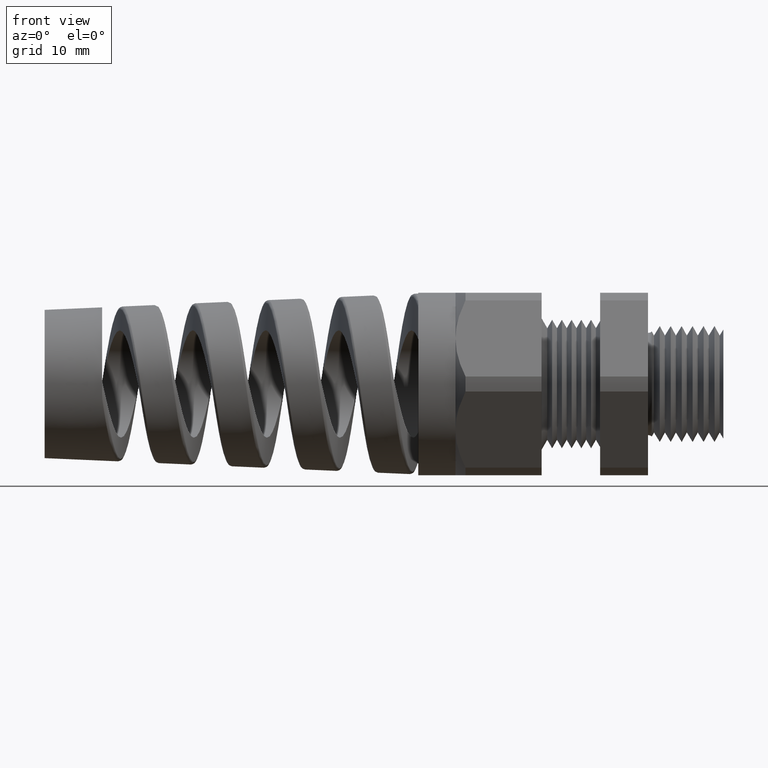
[diagram: clean part render]
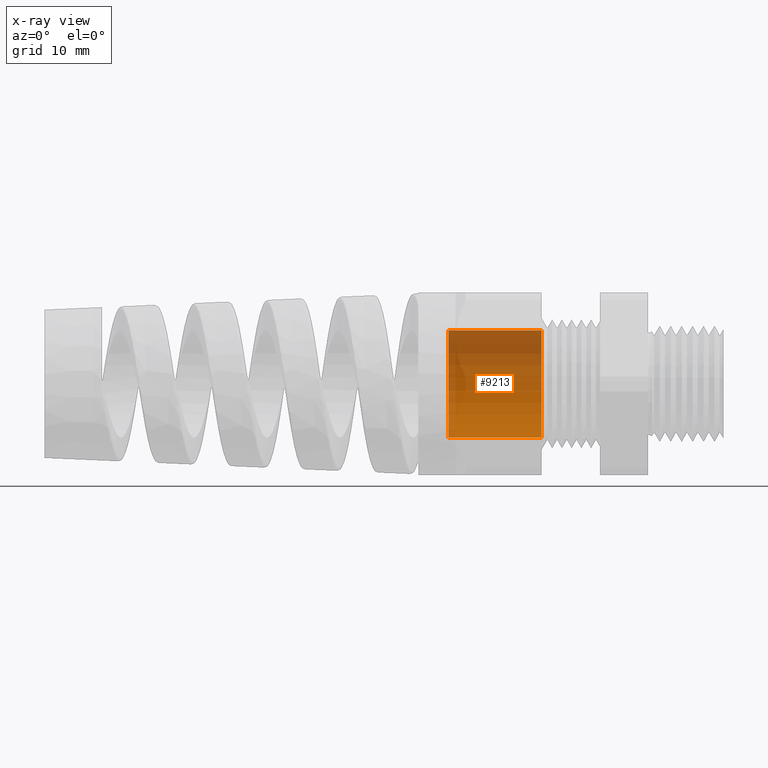
[diagram: x-ray — body ghosted, one internal face saturated and labeled with its STEP entity id]
A machine part, front view, then the same camera in x-ray: the body is ghosted and one INTERNAL B-rep face — a face not visible from any outside direction — is saturated and labeled: STEP entity #9213.
In plain terms, the highlighted cylindrical surface (partial cylindrical patch) has radius 5.6007 mm, axis along (1, 0, 0).
Its self-contained STEP definition (entity closure, byte-faithful):
#1 = ORIENTED_EDGE ( 'NONE', *, *, #97, .F. ) ;
#54 = VERTEX_POINT ( 'NONE', #1033 ) ;
#97 = EDGE_CURVE ( 'NONE', #9189, #54, #1032, .T. ) ;
#1029 = DIRECTION ( 'NONE',  ( 1.000000000000000000, 0.0000000000000000000, 0.0000000000000000000 ) ) ;
#1030 = VECTOR ( 'NONE', #1029, 39.37007874015748100 ) ;
#1031 = CARTESIAN_POINT ( 'NONE',  ( 0.0000000000000000000, 0.0000000000000000000, -0.2205000000000001400 ) ) ;
#1032 = LINE ( 'NONE', #1031, #1030 ) ;
#1033 = CARTESIAN_POINT ( 'NONE',  ( -0.7469291338582678700, 0.0000000000000000000, -0.2205000000000001100 ) ) ;
#8921 = AXIS2_PLACEMENT_3D ( 'NONE', #8923, #8985, #8984 ) ;
#8922 = CYLINDRICAL_SURFACE ( 'NONE', #8921, 0.2205000000000001400 ) ;
#8923 = CARTESIAN_POINT ( 'NONE',  ( 0.0000000000000000000, 0.0000000000000000000, 0.0000000000000000000 ) ) ;
#8924 = FACE_OUTER_BOUND ( 'NONE', #9139, .T. ) ;
#8925 = CARTESIAN_POINT ( 'NONE',  ( -1.130000000000000100, 0.0000000000000000000, -0.2205000000000001400 ) ) ;
#8933 = DIRECTION ( 'NONE',  ( 1.000000000000000000, 0.0000000000000000000, 0.0000000000000000000 ) ) ;
#8934 = VECTOR ( 'NONE', #8933, 39.37007874015748100 ) ;
#8935 = CARTESIAN_POINT ( 'NONE',  ( 0.0000000000000000000, 2.700346192119915900E-017, 0.2205000000000001400 ) ) ;
#8936 = LINE ( 'NONE', #8935, #8934 ) ;
#8937 = DIRECTION ( 'NONE',  ( 0.0000000000000000000, 0.0000000000000000000, -1.000000000000000000 ) ) ;
#8938 = DIRECTION ( 'NONE',  ( 1.000000000000000000, 0.0000000000000000000, 0.0000000000000000000 ) ) ;
#8939 = CARTESIAN_POINT ( 'NONE',  ( -0.7469291338582678700, 0.0000000000000000000, 0.0000000000000000000 ) ) ;
#8940 = AXIS2_PLACEMENT_3D ( 'NONE', #8939, #8938, #8937 ) ;
#8941 = CIRCLE ( 'NONE', #8940, 0.2205000000000001100 ) ;
#8942 = CARTESIAN_POINT ( 'NONE',  ( -0.7469291338582678700, 2.700346192119915500E-017, 0.2205000000000001100 ) ) ;
#8978 = CARTESIAN_POINT ( 'NONE',  ( -1.130000000000000100, 2.700346192119915900E-017, 0.2205000000000001400 ) ) ;
#8979 = DIRECTION ( 'NONE',  ( 0.0000000000000000000, 0.0000000000000000000, -1.000000000000000000 ) ) ;
#8980 = DIRECTION ( 'NONE',  ( 1.000000000000000000, 0.0000000000000000000, 0.0000000000000000000 ) ) ;
#8981 = CARTESIAN_POINT ( 'NONE',  ( -1.130000000000000100, 0.0000000000000000000, 0.0000000000000000000 ) ) ;
#8982 = AXIS2_PLACEMENT_3D ( 'NONE', #8981, #8980, #8979 ) ;
#8983 = CIRCLE ( 'NONE', #8982, 0.2205000000000001400 ) ;
#8984 = DIRECTION ( 'NONE',  ( 0.0000000000000000000, 0.0000000000000000000, -1.000000000000000000 ) ) ;
#8985 = DIRECTION ( 'NONE',  ( 1.000000000000000000, 0.0000000000000000000, 0.0000000000000000000 ) ) ;
#9134 = ORIENTED_EDGE ( 'NONE', *, *, #9136, .F. ) ;
#9135 = VERTEX_POINT ( 'NONE', #8942 ) ;
#9136 = EDGE_CURVE ( 'NONE', #54, #9135, #8941, .T. ) ;
#9137 = ORIENTED_EDGE ( 'NONE', *, *, #9138, .T. ) ;
#9138 = EDGE_CURVE ( 'NONE', #9225, #9135, #8936, .T. ) ;
#9139 = EDGE_LOOP ( 'NONE', ( #9140, #9137, #9134, #1 ) ) ;
#9140 = ORIENTED_EDGE ( 'NONE', *, *, #9218, .T. ) ;
#9189 = VERTEX_POINT ( 'NONE', #8925 ) ;
#9213 = ADVANCED_FACE ( 'NONE', ( #8924 ), #8922, .T. ) ;
#9218 = EDGE_CURVE ( 'NONE', #9189, #9225, #8983, .T. ) ;
#9225 = VERTEX_POINT ( 'NONE', #8978 ) ;